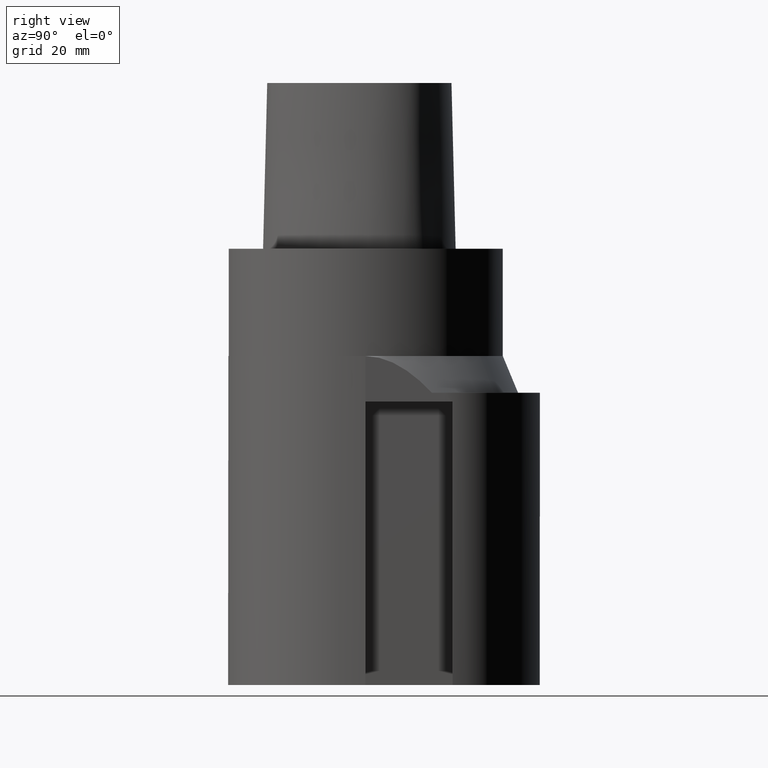
[diagram: clean part render]
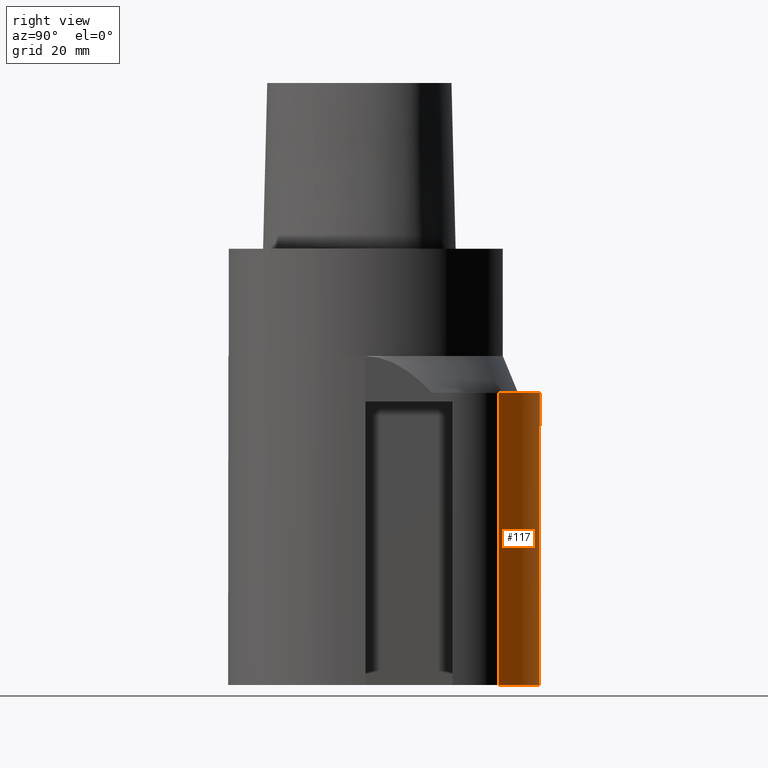
[diagram: same view with one face highlighted and labeled with its STEP entity id]
A machine part, right view. The second image highlights one B-rep face of the part: STEP entity #117.
In plain terms, the highlighted cylindrical surface (partial cylindrical patch) has radius 40 mm, axis along (0, 0, 1).
Its self-contained STEP definition (entity closure, byte-faithful):
#117=ADVANCED_FACE('240[2]',(#308),#309,.T.);
#158=EDGE_CURVE('240[2]',#362,#363,#364,.T.);
#213=EDGE_CURVE('240[2]',#368,#362,#434,.T.);
#215=EDGE_CURVE('240[2]',#368,#372,#436,.T.);
#221=EDGE_CURVE('240[2]',#372,#442,#443,.T.);
#231=EDGE_CURVE('240[2]',#363,#442,#455,.T.);
#308=FACE_OUTER_BOUND('',#553,.T.);
#309=CYLINDRICAL_SURFACE('',#554,40.0);
#362=VERTEX_POINT('',#674);
#363=VERTEX_POINT('',#675);
#364=ELLIPSE('',#676,56.5685424949234,40.0);
#368=VERTEX_POINT('',#682);
#372=VERTEX_POINT('',#687);
#434=CIRCLE('',#865,40.0);
#436=LINE('',#868,#869);
#442=VERTEX_POINT('',#879);
#443=CIRCLE('',#880,40.0000000000001);
#455=LINE('',#896,#897);
#553=EDGE_LOOP('',(#1060,#1061,#1062,#1063,#1064));
#554=AXIS2_PLACEMENT_3D('',#1065,#1066,#1067);
#674=CARTESIAN_POINT('',(-10.9999998252788,38.457769096034,-99.9999998226051));
#675=CARTESIAN_POINT('',(-25.833333333333,30.5391370030147,-85.1666663145511));
#676=AXIS2_PLACEMENT_3D('',#1127,#1128,#1129);
#682=CARTESIAN_POINT('',(25.8333333333343,30.5391370030137,-99.9999998226051));
#687=CARTESIAN_POINT('',(25.833333333334,30.539137003014,-32.9999999999964));
#865=AXIS2_PLACEMENT_3D('',#1226,#1227,#1228);
#868=CARTESIAN_POINT('',(25.833333333334,30.539137003014,-244.999999822605));
#869=VECTOR('',#1229,1.0);
#879=CARTESIAN_POINT('',(-25.8333333333352,30.5391370030156,-32.9999999999964));
#880=AXIS2_PLACEMENT_3D('',#1234,#1235,#1236);
#896=CARTESIAN_POINT('',(-25.833333333333,30.5391370030147,-244.999999822605));
#897=VECTOR('',#1259,1.0);
#1060=ORIENTED_EDGE('',*,*,#231,.T.);
#1061=ORIENTED_EDGE('',*,*,#221,.F.);
#1062=ORIENTED_EDGE('',*,*,#215,.F.);
#1063=ORIENTED_EDGE('',*,*,#213,.T.);
#1064=ORIENTED_EDGE('',*,*,#158,.T.);
#1065=CARTESIAN_POINT('',(-4.07195060173369E-015,0.0,-66.4999999113008));
#1066=DIRECTION('',(6.12323399573677E-017,1.22464679914735E-016,1.0));
#1067=DIRECTION('',(1.22464679914735E-016,1.0,-1.22464679914735E-016));
#1127=CARTESIAN_POINT('',(-6.79678971370691E-015,-2.8421709430404E-014,-110.999999647884));
#1128=DIRECTION('',(0.707106781186543,1.32758517127748E-030,0.707106781186552));
#1129=DIRECTION('',(-0.707106781186552,1.73191211247099E-016,0.707106781186543));
#1226=CARTESIAN_POINT('',(-6.12323398487446E-015,0.0,-99.9999998226051));
#1227=DIRECTION('',(6.12323399573677E-017,1.22464679914735E-016,1.0));
#1228=DIRECTION('',(1.22464679914735E-016,1.0,-1.22464679914735E-016));
#1229=DIRECTION('',(6.12323399573677E-017,1.22464679914735E-016,1.0));
#1234=CARTESIAN_POINT('',(-2.02066721859292E-015,0.0,-32.9999999999964));
#1235=DIRECTION('',(6.12323399573677E-017,1.22464679914735E-016,1.0));
#1236=DIRECTION('',(1.22464679914735E-016,1.0,-1.22464679914735E-016));
#1259=DIRECTION('',(6.12323399573677E-017,1.22464679914735E-016,1.0));